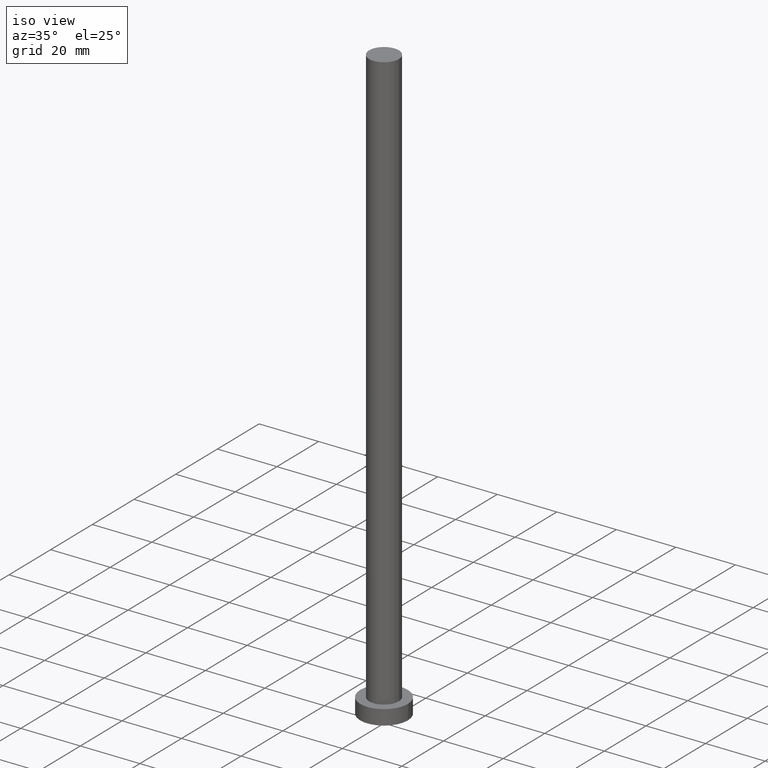
[diagram: clean part render]
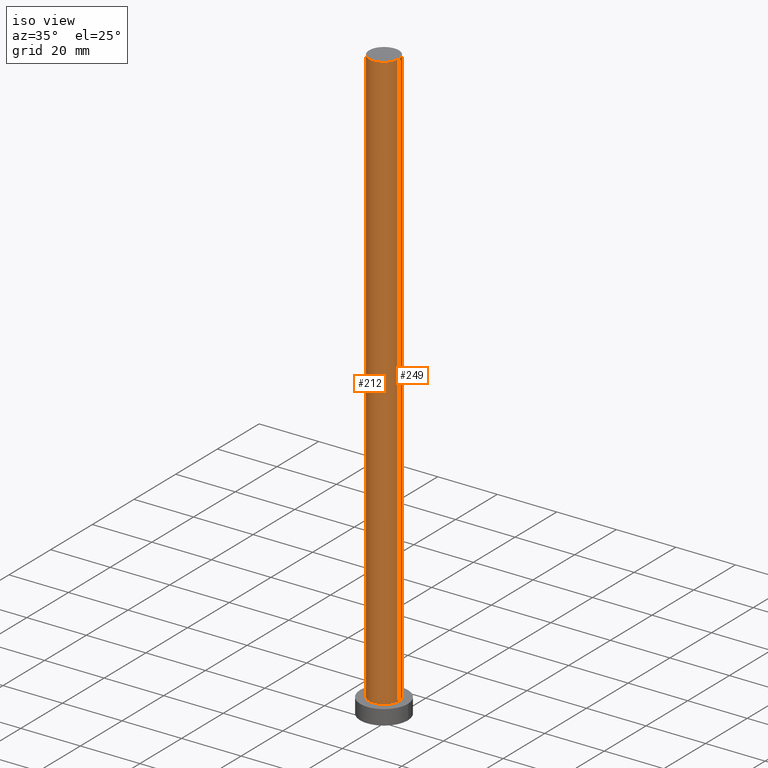
[diagram: same view with one multi-face feature highlighted, each face labeled with its STEP entity id]
A machine part, iso view. The highlighted faces form ONE feature: a constant-radius fillet chain: 2 tangent blend faces with common blend radius 5 mm. The faces share edges in the B-rep.
Their STEP definitions:
[1] entity #212 (Cylinder):
#2 = FACE_OUTER_BOUND ( 'NONE', #47, .T. ) ;
#4 = VERTEX_POINT ( 'NONE', #104 ) ;
#18 = ORIENTED_EDGE ( 'NONE', *, *, #111, .F. ) ;
#23 = AXIS2_PLACEMENT_3D ( 'NONE', #73, #148, #232 ) ;
#24 = LINE ( 'NONE', #92, #80 ) ;
#30 = ORIENTED_EDGE ( 'NONE', *, *, #206, .T. ) ;
#36 = VERTEX_POINT ( 'NONE', #251 ) ;
#38 = CIRCLE ( 'NONE', #129, 5.000000000000000000 ) ;
#47 = EDGE_LOOP ( 'NONE', ( #18, #200, #30, #183 ) ) ;
#48 = CIRCLE ( 'NONE', #180, 5.000000000000000000 ) ;
#57 = DIRECTION ( 'NONE',  ( 1.000000000000000000, 0.000000000000000000, 0.000000000000000000 ) ) ;
#73 = CARTESIAN_POINT ( 'NONE',  ( 0.000000000000000000, 0.000000000000000000, 200.0000000000000000 ) ) ;
#74 = CYLINDRICAL_SURFACE ( 'NONE', #23, 5.000000000000000000 ) ;
#80 = VECTOR ( 'NONE', #172, 1000.000000000000000 ) ;
#92 = CARTESIAN_POINT ( 'NONE',  ( -5.000000000000000000, 0.000000000000000000, 200.0000000000000000 ) ) ;
#101 = VERTEX_POINT ( 'NONE', #211 ) ;
#104 = CARTESIAN_POINT ( 'NONE',  ( 5.000000000000000000, 6.123233995736766282E-16, 200.0000000000000000 ) ) ;
#111 = EDGE_CURVE ( 'NONE', #4, #119, #171, .T. ) ;
#113 = CARTESIAN_POINT ( 'NONE',  ( 5.000000000000000000, 6.123233995736766282E-16, 5.000000000000000000 ) ) ;
#115 = CARTESIAN_POINT ( 'NONE',  ( 0.000000000000000000, 0.000000000000000000, 5.000000000000000000 ) ) ;
#119 = VERTEX_POINT ( 'NONE', #113 ) ;
#129 = AXIS2_PLACEMENT_3D ( 'NONE', #234, #150, #57 ) ;
#147 = DIRECTION ( 'NONE',  ( -0.000000000000000000, -0.000000000000000000, -1.000000000000000000 ) ) ;
#148 = DIRECTION ( 'NONE',  ( -0.000000000000000000, -0.000000000000000000, -1.000000000000000000 ) ) ;
#150 = DIRECTION ( 'NONE',  ( 0.000000000000000000, 0.000000000000000000, 1.000000000000000000 ) ) ;
#169 = EDGE_CURVE ( 'NONE', #36, #4, #38, .T. ) ;
#171 = LINE ( 'NONE', #254, #197 ) ;
#172 = DIRECTION ( 'NONE',  ( -0.000000000000000000, -0.000000000000000000, -1.000000000000000000 ) ) ;
#180 = AXIS2_PLACEMENT_3D ( 'NONE', #115, #195, #230 ) ;
#183 = ORIENTED_EDGE ( 'NONE', *, *, #192, .T. ) ;
#192 = EDGE_CURVE ( 'NONE', #101, #119, #48, .T. ) ;
#195 = DIRECTION ( 'NONE',  ( 0.000000000000000000, 0.000000000000000000, 1.000000000000000000 ) ) ;
#197 = VECTOR ( 'NONE', #147, 1000.000000000000000 ) ;
#200 = ORIENTED_EDGE ( 'NONE', *, *, #169, .F. ) ;
#206 = EDGE_CURVE ( 'NONE', #36, #101, #24, .T. ) ;
#211 = CARTESIAN_POINT ( 'NONE',  ( -5.000000000000000000, 0.000000000000000000, 5.000000000000000000 ) ) ;
#212 = ADVANCED_FACE ( 'NONE', ( #2 ), #74, .T. ) ;
#230 = DIRECTION ( 'NONE',  ( 1.000000000000000000, 0.000000000000000000, 0.000000000000000000 ) ) ;
#232 = DIRECTION ( 'NONE',  ( -1.000000000000000000, 0.000000000000000000, 0.000000000000000000 ) ) ;
#234 = CARTESIAN_POINT ( 'NONE',  ( 0.000000000000000000, 0.000000000000000000, 200.0000000000000000 ) ) ;
#251 = CARTESIAN_POINT ( 'NONE',  ( -5.000000000000000000, 0.000000000000000000, 200.0000000000000000 ) ) ;
#254 = CARTESIAN_POINT ( 'NONE',  ( 5.000000000000000000, 6.123233995736766282E-16, 200.0000000000000000 ) ) ;
[2] entity #249 (Cylinder):
#4 = VERTEX_POINT ( 'NONE', #104 ) ;
#21 = DIRECTION ( 'NONE',  ( 0.000000000000000000, 0.000000000000000000, 1.000000000000000000 ) ) ;
#24 = LINE ( 'NONE', #92, #80 ) ;
#34 = CARTESIAN_POINT ( 'NONE',  ( 0.000000000000000000, 0.000000000000000000, 5.000000000000000000 ) ) ;
#36 = VERTEX_POINT ( 'NONE', #251 ) ;
#40 = EDGE_CURVE ( 'NONE', #119, #101, #127, .T. ) ;
#46 = ORIENTED_EDGE ( 'NONE', *, *, #109, .F. ) ;
#59 = AXIS2_PLACEMENT_3D ( 'NONE', #112, #21, #86 ) ;
#72 = DIRECTION ( 'NONE',  ( 0.000000000000000000, 0.000000000000000000, 1.000000000000000000 ) ) ;
#76 = ORIENTED_EDGE ( 'NONE', *, *, #206, .F. ) ;
#80 = VECTOR ( 'NONE', #172, 1000.000000000000000 ) ;
#86 = DIRECTION ( 'NONE',  ( 1.000000000000000000, 0.000000000000000000, 0.000000000000000000 ) ) ;
#92 = CARTESIAN_POINT ( 'NONE',  ( -5.000000000000000000, 0.000000000000000000, 200.0000000000000000 ) ) ;
#93 = DIRECTION ( 'NONE',  ( -0.000000000000000000, -0.000000000000000000, -1.000000000000000000 ) ) ;
#101 = VERTEX_POINT ( 'NONE', #211 ) ;
#104 = CARTESIAN_POINT ( 'NONE',  ( 5.000000000000000000, 6.123233995736766282E-16, 200.0000000000000000 ) ) ;
#109 = EDGE_CURVE ( 'NONE', #4, #36, #215, .T. ) ;
#111 = EDGE_CURVE ( 'NONE', #4, #119, #171, .T. ) ;
#112 = CARTESIAN_POINT ( 'NONE',  ( 0.000000000000000000, 0.000000000000000000, 200.0000000000000000 ) ) ;
#113 = CARTESIAN_POINT ( 'NONE',  ( 5.000000000000000000, 6.123233995736766282E-16, 5.000000000000000000 ) ) ;
#119 = VERTEX_POINT ( 'NONE', #113 ) ;
#127 = CIRCLE ( 'NONE', #235, 5.000000000000000000 ) ;
#138 = EDGE_LOOP ( 'NONE', ( #46, #202, #209, #76 ) ) ;
#147 = DIRECTION ( 'NONE',  ( -0.000000000000000000, -0.000000000000000000, -1.000000000000000000 ) ) ;
#157 = FACE_OUTER_BOUND ( 'NONE', #138, .T. ) ;
#171 = LINE ( 'NONE', #254, #197 ) ;
#172 = DIRECTION ( 'NONE',  ( -0.000000000000000000, -0.000000000000000000, -1.000000000000000000 ) ) ;
#174 = DIRECTION ( 'NONE',  ( -1.000000000000000000, 0.000000000000000000, 0.000000000000000000 ) ) ;
#177 = CARTESIAN_POINT ( 'NONE',  ( 0.000000000000000000, 0.000000000000000000, 200.0000000000000000 ) ) ;
#197 = VECTOR ( 'NONE', #147, 1000.000000000000000 ) ;
#202 = ORIENTED_EDGE ( 'NONE', *, *, #111, .T. ) ;
#206 = EDGE_CURVE ( 'NONE', #36, #101, #24, .T. ) ;
#209 = ORIENTED_EDGE ( 'NONE', *, *, #40, .T. ) ;
#211 = CARTESIAN_POINT ( 'NONE',  ( -5.000000000000000000, 0.000000000000000000, 5.000000000000000000 ) ) ;
#215 = CIRCLE ( 'NONE', #59, 5.000000000000000000 ) ;
#216 = CYLINDRICAL_SURFACE ( 'NONE', #233, 5.000000000000000000 ) ;
#224 = DIRECTION ( 'NONE',  ( 1.000000000000000000, 0.000000000000000000, 0.000000000000000000 ) ) ;
#233 = AXIS2_PLACEMENT_3D ( 'NONE', #177, #93, #174 ) ;
#235 = AXIS2_PLACEMENT_3D ( 'NONE', #34, #72, #224 ) ;
#249 = ADVANCED_FACE ( 'NONE', ( #157 ), #216, .T. ) ;
#251 = CARTESIAN_POINT ( 'NONE',  ( -5.000000000000000000, 0.000000000000000000, 200.0000000000000000 ) ) ;
#254 = CARTESIAN_POINT ( 'NONE',  ( 5.000000000000000000, 6.123233995736766282E-16, 200.0000000000000000 ) ) ;